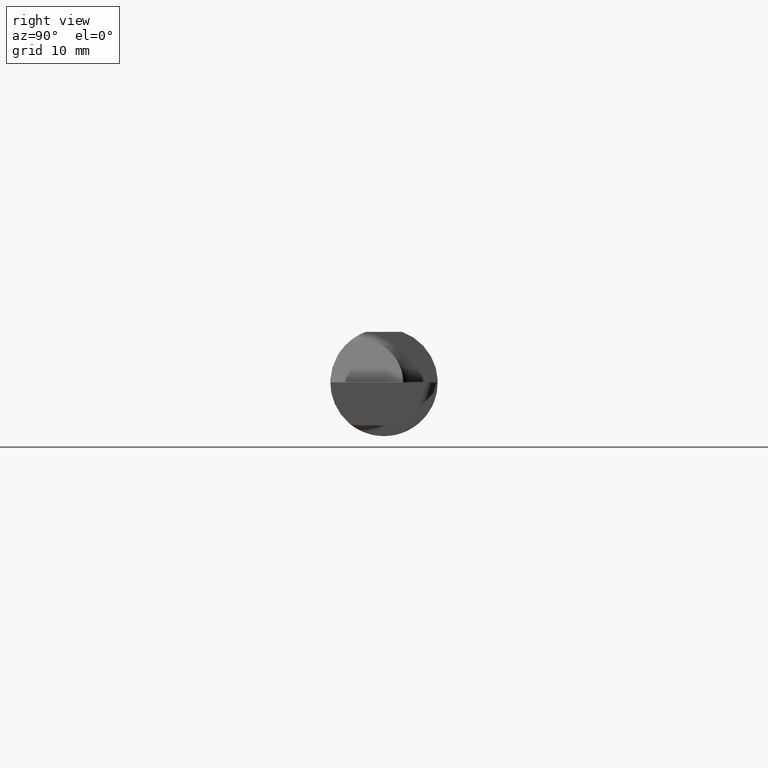
[diagram: clean part render]
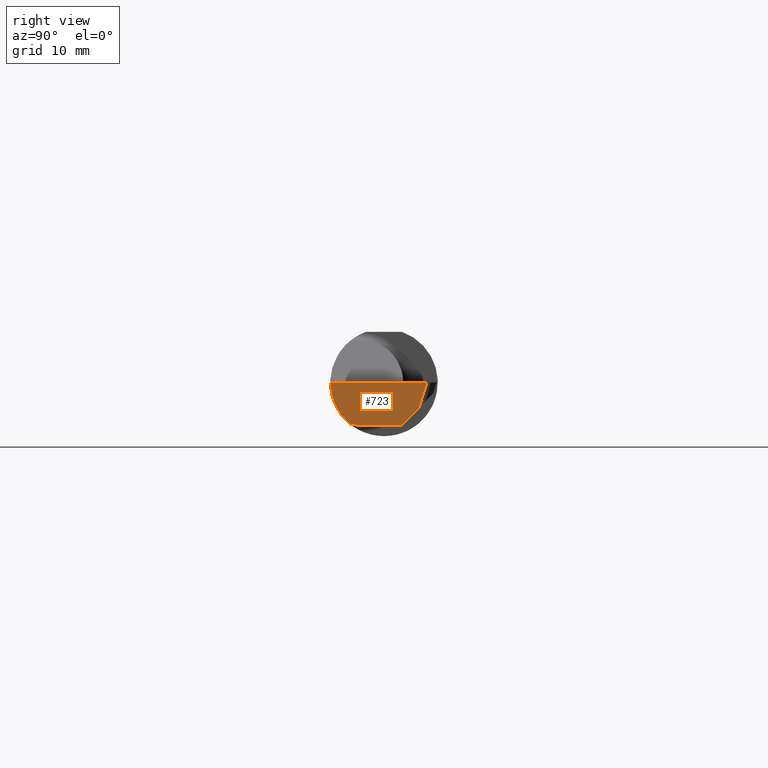
[diagram: same view with one face highlighted and labeled with its STEP entity id]
A machine part, right view. The second image highlights one B-rep face of the part: STEP entity #723.
In plain terms, the highlighted planar face has unit normal (-0.9992, 0.0349, 0.0175).
Its self-contained STEP definition (entity closure, byte-faithful):
#24 = EDGE_CURVE ( 'NONE', #61, #676, #179, .T. ) ;
#44 = CARTESIAN_POINT ( 'NONE',  ( 2.496599625675735457, 0.1068818013178887832, -0.1034212502252615240 ) ) ;
#55 = CARTESIAN_POINT ( 'NONE',  ( 2.499980768683121024, 0.1519786885938757826, 0.000000000000000000 ) ) ;
#56 = VECTOR ( 'NONE', #566, 39.37007874015747433 ) ;
#61 = VERTEX_POINT ( 'NONE', #746 ) ;
#67 = FACE_OUTER_BOUND ( 'NONE', #611, .T. ) ;
#89 = VERTEX_POINT ( 'NONE', #484 ) ;
#94 = ORIENTED_EDGE ( 'NONE', *, *, #452, .F. ) ;
#96 = AXIS2_PLACEMENT_3D ( 'NONE', #55, #111, #165 ) ;
#102 = EDGE_CURVE ( 'NONE', #89, #186, #245, .T. ) ;
#111 = DIRECTION ( 'NONE',  ( -0.9992386149554828290, 0.03489418134010577321, 0.01745240643728358798 ) ) ;
#141 = CARTESIAN_POINT ( 'NONE',  ( 2.488026713523223243, -0.1172600179964006090, -0.1461167706989303927 ) ) ;
#163 = CARTESIAN_POINT ( 'NONE',  ( 2.489143054109411057, -0.08335000000000014619, -0.1500000000000000500 ) ) ;
#165 = DIRECTION ( 'NONE',  ( -0.03489949670249307273, -0.9993908270190959842, 0.000000000000000000 ) ) ;
#174 = ORIENTED_EDGE ( 'NONE', *, *, #24, .T. ) ;
#179 = LINE ( 'NONE', #669, #261 ) ;
#180 = ORIENTED_EDGE ( 'NONE', *, *, #813, .T. ) ;
#186 = VERTEX_POINT ( 'NONE', #684 ) ;
#201 = VERTEX_POINT ( 'NONE', #383 ) ;
#218 = EDGE_CURVE ( 'NONE', #89, #61, #563, .T. ) ;
#245 = LINE ( 'NONE', #44, #535 ) ;
#261 = VECTOR ( 'NONE', #744, 39.37007874015747433 ) ;
#298 = CARTESIAN_POINT ( 'NONE',  ( 2.487121452143546296, -0.1873500000000000165, -0.05781030015605123640 ) ) ;
#351 = ORIENTED_EDGE ( 'NONE', *, *, #551, .F. ) ;
#383 = CARTESIAN_POINT ( 'NONE',  ( 2.488026713523223243, -0.1172600179964006090, -0.1461167706989303927 ) ) ;
#384 = CARTESIAN_POINT ( 'NONE',  ( 2.488370294460939824, -0.1061291577212409576, -0.1486999626928446339 ) ) ;
#387 = CARTESIAN_POINT ( 'NONE',  ( 2.489143054109411057, -0.08335000000000014619, -0.1500000000000000500 ) ) ;
#419 = LINE ( 'NONE', #479, #510 ) ;
#428 = CARTESIAN_POINT ( 'NONE',  ( 2.488026713523223243, -0.1172600179964006090, -0.1461167706989303927 ) ) ;
#438 = ORIENTED_EDGE ( 'NONE', *, *, #102, .F. ) ;
#452 = EDGE_CURVE ( 'NONE', #186, #500, #419, .T. ) ;
#479 = CARTESIAN_POINT ( 'NONE',  ( 2.489440290287315172, -0.07483826952468658478, -0.1500000000000000500 ) ) ;
#483 = CARTESIAN_POINT ( 'NONE',  ( 2.487084196965268390, -0.1623470442677540926, -0.1099340280425339100 ) ) ;
#484 = CARTESIAN_POINT ( 'NONE',  ( 2.497385173767516786, 0.1218770478189730444, -0.08842600372417708243 ) ) ;
#500 = VERTEX_POINT ( 'NONE', #163 ) ;
#510 = VECTOR ( 'NONE', #663, 39.37007874015748854 ) ;
#528 = ORIENTED_EDGE ( 'NONE', *, *, #218, .T. ) ;
#535 = VECTOR ( 'NONE', #681, 39.37007874015748143 ) ;
#551 = EDGE_CURVE ( 'NONE', #201, #676, #686, .T. ) ;
#563 = LINE ( 'NONE', #630, #56 ) ;
#566 = DIRECTION ( 'NONE',  ( 0.02739170151059983765, 0.3089010440752013031, 0.9506996579664920288 ) ) ;
#611 = EDGE_LOOP ( 'NONE', ( #438, #528, #174, #351, #180, #94 ) ) ;
#630 = CARTESIAN_POINT ( 'NONE',  ( 2.499944547461123268, 0.1507395558974708727, 0.0004036622306032532342 ) ) ;
#632 = CARTESIAN_POINT ( 'NONE',  ( 2.488744025780163405, -0.09477667630339431382, -0.1499999999999999944 ) ) ;
#660 = CARTESIAN_POINT ( 'NONE',  ( 2.488131149766799943, -0.1873499999999999888, 0.000000000000000000 ) ) ;
#663 = DIRECTION ( 'NONE',  ( -0.03489949670249307273, -0.9993908270190959842, 0.000000000000000000 ) ) ;
#669 = CARTESIAN_POINT ( 'NONE',  ( 2.499980768683121024, 0.1519786885938757826, 0.000000000000000000 ) ) ;
#676 = VERTEX_POINT ( 'NONE', #709 ) ;
#681 = DIRECTION ( 'NONE',  ( -0.03701744261649735079, -0.7066221440565398915, -0.7066221440565479961 ) ) ;
#684 = CARTESIAN_POINT ( 'NONE',  ( 2.494159529209134529, 0.06030305154315080546, -0.1500000000000000500 ) ) ;
#686 =( BOUNDED_CURVE ( )  B_SPLINE_CURVE ( 3, ( #428, #483, #298, #660 ),
 .UNSPECIFIED., .F., .F. ) 
 B_SPLINE_CURVE_WITH_KNOTS ( ( 4, 4 ),
 ( 5.852427379562187504, 6.746954780470635349 ),
 .UNSPECIFIED. ) 
 CURVE ( )  GEOMETRIC_REPRESENTATION_ITEM ( )  RATIONAL_B_SPLINE_CURVE ( ( 1.000000000000000000, 0.9344226172588802060, 0.9344226172588802060, 1.000000000000000000 ) ) 
 REPRESENTATION_ITEM ( '' )  );
#709 = CARTESIAN_POINT ( 'NONE',  ( 2.488131149766799943, -0.1873499999999999888, 0.000000000000000000 ) ) ;
#712 =( BOUNDED_CURVE ( )  B_SPLINE_CURVE ( 3, ( #141, #384, #632, #387 ),
 .UNSPECIFIED., .F., .F. ) 
 B_SPLINE_CURVE_WITH_KNOTS ( ( 4, 4 ),
 ( 0.8789888184544035754, 1.107026853503846553 ),
 .UNSPECIFIED. ) 
 CURVE ( )  GEOMETRIC_REPRESENTATION_ITEM ( )  RATIONAL_B_SPLINE_CURVE ( ( 1.000000000000000000, 0.9956712472009929815, 0.9956712472009929815, 1.000000000000000000 ) ) 
 REPRESENTATION_ITEM ( '' )  );
#723 = ADVANCED_FACE ( 'NONE', ( #67 ), #800, .F. ) ;
#744 = DIRECTION ( 'NONE',  ( -0.03489949670249308661, -0.9993908270190960952, 0.000000000000000000 ) ) ;
#746 = CARTESIAN_POINT ( 'NONE',  ( 2.499932917084233264, 0.1506083980881225692, 0.000000000000000000 ) ) ;
#800 = PLANE ( 'NONE',  #96 ) ;
#813 = EDGE_CURVE ( 'NONE', #201, #500, #712, .T. ) ;